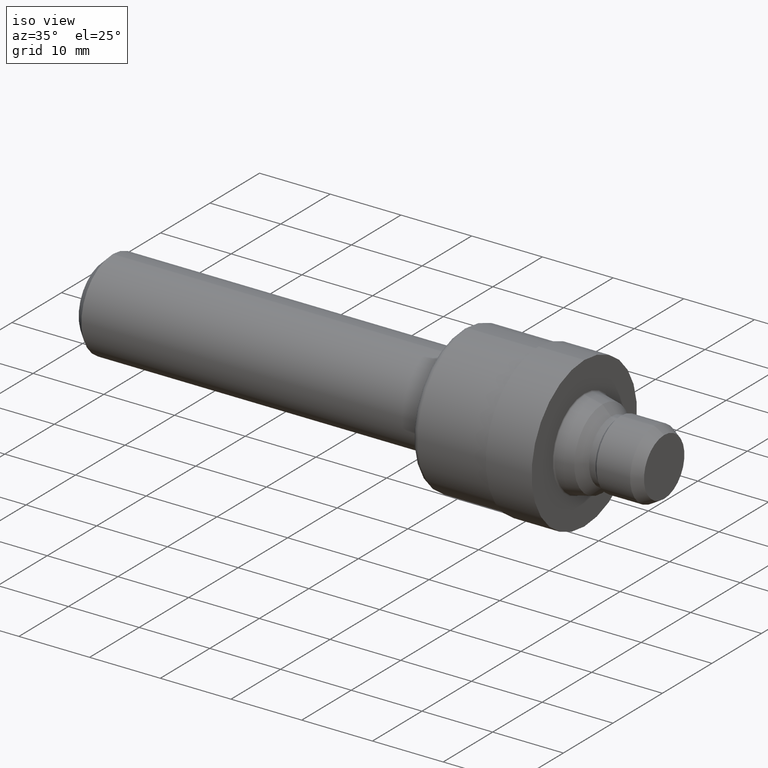
[diagram: clean part render]
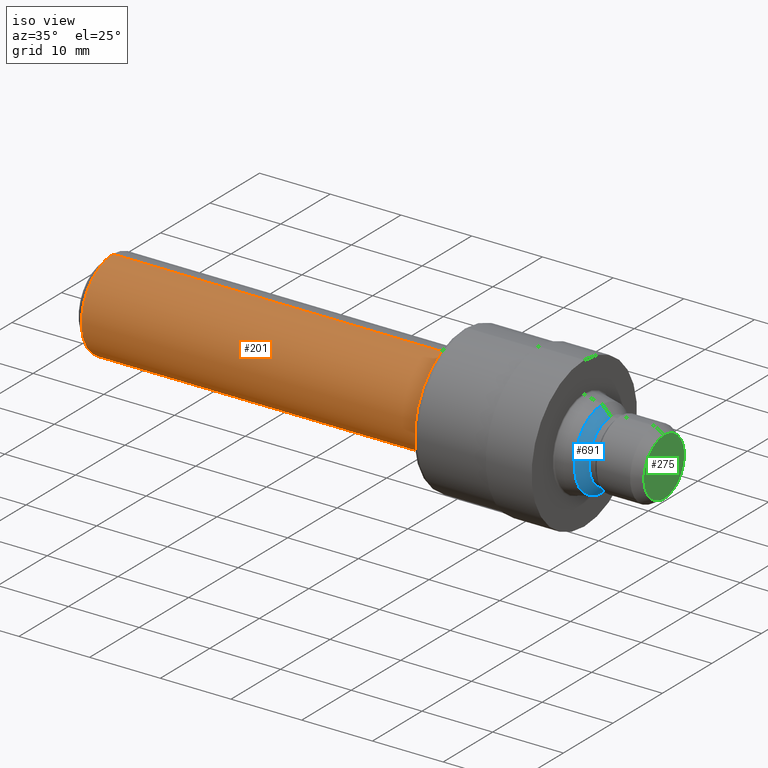
[diagram: same view with three faces highlighted in distinct colors, each labeled with its STEP entity id]
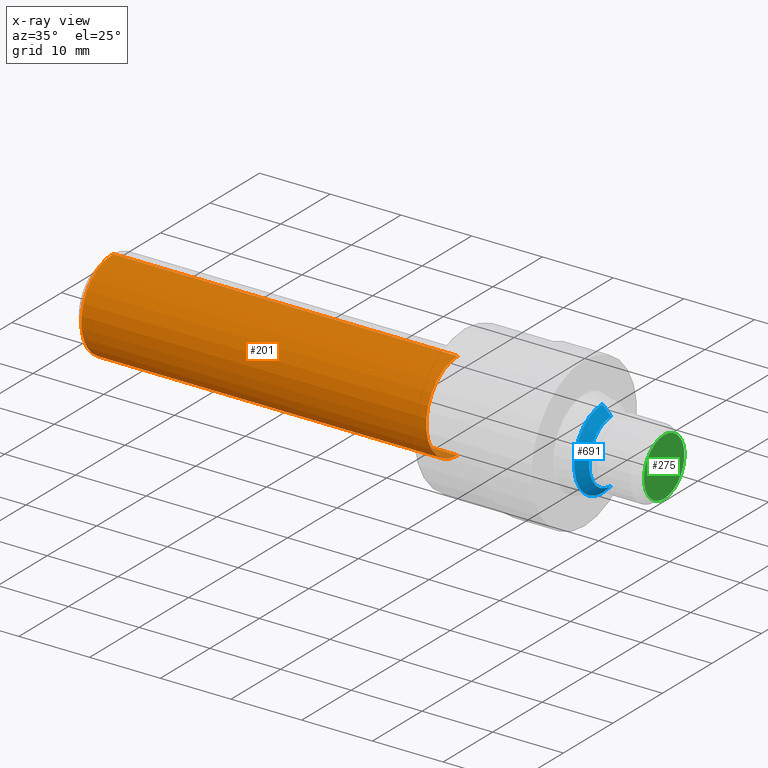
[diagram: x-ray of the same camera — body ghosted, the three highlighted faces saturated]
A machine part, iso view with three faces highlighted in distinct colors.
The next image is the same camera in x-ray (body ghosted, the three faces saturated) — at least one of them is partly hidden behind the body in this view.
Their STEP definitions:

[orange] entity #201 — the highlighted cylindrical surface (partial cylindrical patch) has radius 6.35 mm, axis along (-1, -0, -0).
#14 = DIRECTION ( 'NONE',  ( -1.000000000000000000, -0.0000000000000000000, -0.0000000000000000000 ) ) ;
#17 = CARTESIAN_POINT ( 'NONE',  ( 0.05000000000000000278, 3.061616997868383018E-17, -0.2500000000000000000 ) ) ;
#18 = VERTEX_POINT ( 'NONE', #723 ) ;
#40 = EDGE_CURVE ( 'NONE', #819, #790, #301, .T. ) ;
#57 = CARTESIAN_POINT ( 'NONE',  ( 0.05000000000000000278, 0.0000000000000000000, 0.0000000000000000000 ) ) ;
#79 = DIRECTION ( 'NONE',  ( -1.000000000000000000, -0.0000000000000000000, -0.0000000000000000000 ) ) ;
#82 = CARTESIAN_POINT ( 'NONE',  ( 1.969999999999999973, 0.0000000000000000000, 0.0000000000000000000 ) ) ;
#84 = VERTEX_POINT ( 'NONE', #17 ) ;
#117 = VECTOR ( 'NONE', #406, 39.37007874015748143 ) ;
#137 = EDGE_CURVE ( 'NONE', #819, #84, #554, .T. ) ;
#186 = EDGE_CURVE ( 'NONE', #84, #18, #750, .T. ) ;
#199 = CARTESIAN_POINT ( 'NONE',  ( 0.0000000000000000000, 3.061616997868383018E-17, -0.2500000000000000000 ) ) ;
#201 = ADVANCED_FACE ( 'NONE', ( #572 ), #832, .T. ) ;
#221 = ORIENTED_EDGE ( 'NONE', *, *, #40, .T. ) ;
#232 = DIRECTION ( 'NONE',  ( 0.0000000000000000000, 0.0000000000000000000, 1.000000000000000000 ) ) ;
#288 = EDGE_CURVE ( 'NONE', #790, #18, #703, .T. ) ;
#301 = CIRCLE ( 'NONE', #698, 0.2500000000000000000 ) ;
#325 = CARTESIAN_POINT ( 'NONE',  ( 0.0000000000000000000, 0.0000000000000000000, 0.2500000000000000000 ) ) ;
#348 = ORIENTED_EDGE ( 'NONE', *, *, #137, .F. ) ;
#363 = ORIENTED_EDGE ( 'NONE', *, *, #186, .F. ) ;
#381 = DIRECTION ( 'NONE',  ( -1.000000000000000000, -0.0000000000000000000, -0.0000000000000000000 ) ) ;
#398 = DIRECTION ( 'NONE',  ( 0.0000000000000000000, 0.0000000000000000000, 1.000000000000000000 ) ) ;
#406 = DIRECTION ( 'NONE',  ( -1.000000000000000000, -0.0000000000000000000, -0.0000000000000000000 ) ) ;
#471 = DIRECTION ( 'NONE',  ( 0.0000000000000000000, 0.0000000000000000000, 1.000000000000000000 ) ) ;
#511 = AXIS2_PLACEMENT_3D ( 'NONE', #647, #14, #398 ) ;
#533 = AXIS2_PLACEMENT_3D ( 'NONE', #57, #607, #471 ) ;
#538 = VECTOR ( 'NONE', #381, 39.37007874015748143 ) ;
#543 = EDGE_LOOP ( 'NONE', ( #348, #221, #688, #363 ) ) ;
#554 = LINE ( 'NONE', #199, #117 ) ;
#572 = FACE_OUTER_BOUND ( 'NONE', #543, .T. ) ;
#607 = DIRECTION ( 'NONE',  ( -1.000000000000000000, -0.0000000000000000000, -0.0000000000000000000 ) ) ;
#634 = CARTESIAN_POINT ( 'NONE',  ( 1.969999999999999973, 0.0000000000000000000, 0.2500000000000000000 ) ) ;
#647 = CARTESIAN_POINT ( 'NONE',  ( 0.0000000000000000000, 0.0000000000000000000, 0.0000000000000000000 ) ) ;
#688 = ORIENTED_EDGE ( 'NONE', *, *, #288, .T. ) ;
#698 = AXIS2_PLACEMENT_3D ( 'NONE', #82, #79, #232 ) ;
#703 = LINE ( 'NONE', #325, #538 ) ;
#708 = CARTESIAN_POINT ( 'NONE',  ( 1.969999999999999973, 3.245314017740486209E-17, -0.2500000000000000000 ) ) ;
#723 = CARTESIAN_POINT ( 'NONE',  ( 0.05000000000000000278, 0.0000000000000000000, 0.2500000000000000000 ) ) ;
#750 = CIRCLE ( 'NONE', #533, 0.2500000000000000000 ) ;
#790 = VERTEX_POINT ( 'NONE', #634 ) ;
#819 = VERTEX_POINT ( 'NONE', #708 ) ;
#832 = CYLINDRICAL_SURFACE ( 'NONE', #511, 0.2500000000000000000 ) ;

[blue] entity #691 — the highlighted conical surface has half-angle 45 deg.
#1 = CARTESIAN_POINT ( 'NONE',  ( 2.776000000000000245, 2.734413260897318333E-17, -0.2232817872713278307 ) ) ;
#35 = FACE_OUTER_BOUND ( 'NONE', #323, .T. ) ;
#86 = ORIENTED_EDGE ( 'NONE', *, *, #738, .T. ) ;
#100 = VERTEX_POINT ( 'NONE', #368 ) ;
#115 = DIRECTION ( 'NONE',  ( -0.7071067811865530128, 8.659560562354865065E-17, -0.7071067811865420216 ) ) ;
#118 = CARTESIAN_POINT ( 'NONE',  ( 2.776000000000000245, 0.0000000000000000000, 0.2232817872713278307 ) ) ;
#119 = AXIS2_PLACEMENT_3D ( 'NONE', #748, #755, #759 ) ;
#140 = AXIS2_PLACEMENT_3D ( 'NONE', #714, #719, #721 ) ;
#169 = CARTESIAN_POINT ( 'NONE',  ( 2.824281787271328614, 2.143131898507867989E-17, -0.1749999999999999889 ) ) ;
#171 = CONICAL_SURFACE ( 'NONE', #242, 0.1749999999999999889, 0.7853981633974405074 ) ;
#210 = VERTEX_POINT ( 'NONE', #1 ) ;
#242 = AXIS2_PLACEMENT_3D ( 'NONE', #435, #417, #422 ) ;
#259 = ORIENTED_EDGE ( 'NONE', *, *, #818, .F. ) ;
#323 = EDGE_LOOP ( 'NONE', ( #824, #478, #86, #259 ) ) ;
#331 = EDGE_CURVE ( 'NONE', #480, #210, #439, .T. ) ;
#368 = CARTESIAN_POINT ( 'NONE',  ( 2.824281787271328614, 0.0000000000000000000, 0.1749999999999999889 ) ) ;
#385 = VECTOR ( 'NONE', #115, 39.37007874015748143 ) ;
#397 = CIRCLE ( 'NONE', #119, 0.2232817872713278307 ) ;
#417 = DIRECTION ( 'NONE',  ( -1.000000000000000000, -0.0000000000000000000, -0.0000000000000000000 ) ) ;
#422 = DIRECTION ( 'NONE',  ( 0.0000000000000000000, 0.0000000000000000000, 1.000000000000000000 ) ) ;
#435 = CARTESIAN_POINT ( 'NONE',  ( 2.824281787271328614, 0.0000000000000000000, 0.0000000000000000000 ) ) ;
#439 = LINE ( 'NONE', #577, #385 ) ;
#444 = VERTEX_POINT ( 'NONE', #118 ) ;
#455 = CIRCLE ( 'NONE', #140, 0.1749999999999999889 ) ;
#478 = ORIENTED_EDGE ( 'NONE', *, *, #812, .T. ) ;
#480 = VERTEX_POINT ( 'NONE', #169 ) ;
#499 = CARTESIAN_POINT ( 'NONE',  ( 2.824281787271328614, 0.0000000000000000000, 0.1749999999999999889 ) ) ;
#513 = DIRECTION ( 'NONE',  ( -0.7071067811865530128, 0.0000000000000000000, 0.7071067811865420216 ) ) ;
#539 = LINE ( 'NONE', #499, #783 ) ;
#577 = CARTESIAN_POINT ( 'NONE',  ( 2.824281787271328614, 2.143131898507867989E-17, -0.1749999999999999889 ) ) ;
#691 = ADVANCED_FACE ( 'NONE', ( #35 ), #171, .T. ) ;
#714 = CARTESIAN_POINT ( 'NONE',  ( 2.824281787271328614, 0.0000000000000000000, 0.0000000000000000000 ) ) ;
#719 = DIRECTION ( 'NONE',  ( -1.000000000000000000, -0.0000000000000000000, -0.0000000000000000000 ) ) ;
#721 = DIRECTION ( 'NONE',  ( 0.0000000000000000000, 0.0000000000000000000, 1.000000000000000000 ) ) ;
#738 = EDGE_CURVE ( 'NONE', #100, #444, #539, .T. ) ;
#748 = CARTESIAN_POINT ( 'NONE',  ( 2.776000000000000245, 0.0000000000000000000, 0.0000000000000000000 ) ) ;
#755 = DIRECTION ( 'NONE',  ( -1.000000000000000000, -0.0000000000000000000, -0.0000000000000000000 ) ) ;
#759 = DIRECTION ( 'NONE',  ( 0.0000000000000000000, 0.0000000000000000000, 1.000000000000000000 ) ) ;
#783 = VECTOR ( 'NONE', #513, 39.37007874015748143 ) ;
#812 = EDGE_CURVE ( 'NONE', #480, #100, #455, .T. ) ;
#818 = EDGE_CURVE ( 'NONE', #210, #444, #397, .T. ) ;
#824 = ORIENTED_EDGE ( 'NONE', *, *, #331, .F. ) ;

[green] entity #275 — the highlighted planar face has unit normal (-1, 0, -0).
#6 = CARTESIAN_POINT ( 'NONE',  ( 3.120000000000000107, 0.1607457351945705826, 0.0000000000000000000 ) ) ;
#29 = ORIENTED_EDGE ( 'NONE', *, *, #319, .F. ) ;
#94 = VERTEX_POINT ( 'NONE', #433 ) ;
#123 = CIRCLE ( 'NONE', #184, 0.1607457351945705826 ) ;
#184 = AXIS2_PLACEMENT_3D ( 'NONE', #627, #628, #630 ) ;
#190 = PLANE ( 'NONE',  #467 ) ;
#215 = CARTESIAN_POINT ( 'NONE',  ( 3.120000000000000107, 0.0000000000000000000, 0.0000000000000000000 ) ) ;
#275 = ADVANCED_FACE ( 'NONE', ( #683 ), #190, .F. ) ;
#278 = DIRECTION ( 'NONE',  ( -0.0000000000000000000, 0.0000000000000000000, 1.000000000000000000 ) ) ;
#319 = EDGE_CURVE ( 'NONE', #94, #788, #700, .T. ) ;
#321 = DIRECTION ( 'NONE',  ( -1.000000000000000000, 0.0000000000000000000, -0.0000000000000000000 ) ) ;
#388 = DIRECTION ( 'NONE',  ( 0.0000000000000000000, 0.0000000000000000000, 1.000000000000000000 ) ) ;
#433 = CARTESIAN_POINT ( 'NONE',  ( 3.120000000000000107, 0.0000000000000000000, 0.1607457351945705826 ) ) ;
#460 = AXIS2_PLACEMENT_3D ( 'NONE', #215, #633, #388 ) ;
#467 = AXIS2_PLACEMENT_3D ( 'NONE', #6, #321, #278 ) ;
#468 = EDGE_LOOP ( 'NONE', ( #29, #567 ) ) ;
#485 = CARTESIAN_POINT ( 'NONE',  ( 3.120000000000000107, 2.163006294592422102E-17, -0.1607457351945705826 ) ) ;
#567 = ORIENTED_EDGE ( 'NONE', *, *, #779, .F. ) ;
#627 = CARTESIAN_POINT ( 'NONE',  ( 3.120000000000000107, 0.0000000000000000000, 0.0000000000000000000 ) ) ;
#628 = DIRECTION ( 'NONE',  ( -1.000000000000000000, -0.0000000000000000000, -0.0000000000000000000 ) ) ;
#630 = DIRECTION ( 'NONE',  ( 0.0000000000000000000, 0.0000000000000000000, 1.000000000000000000 ) ) ;
#633 = DIRECTION ( 'NONE',  ( -1.000000000000000000, -0.0000000000000000000, -0.0000000000000000000 ) ) ;
#683 = FACE_OUTER_BOUND ( 'NONE', #468, .T. ) ;
#700 = CIRCLE ( 'NONE', #460, 0.1607457351945705826 ) ;
#779 = EDGE_CURVE ( 'NONE', #788, #94, #123, .T. ) ;
#788 = VERTEX_POINT ( 'NONE', #485 ) ;